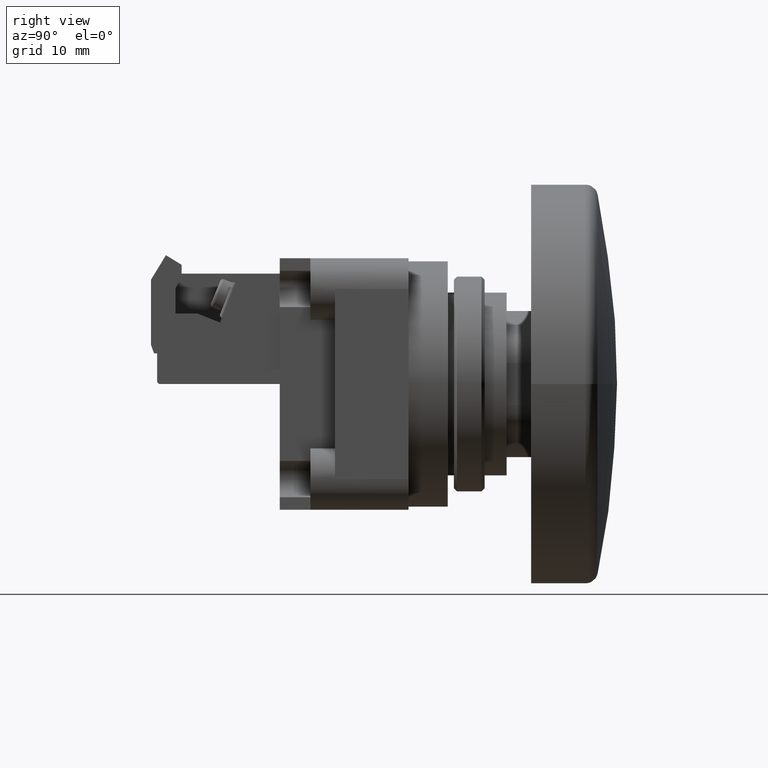
[diagram: clean part render]
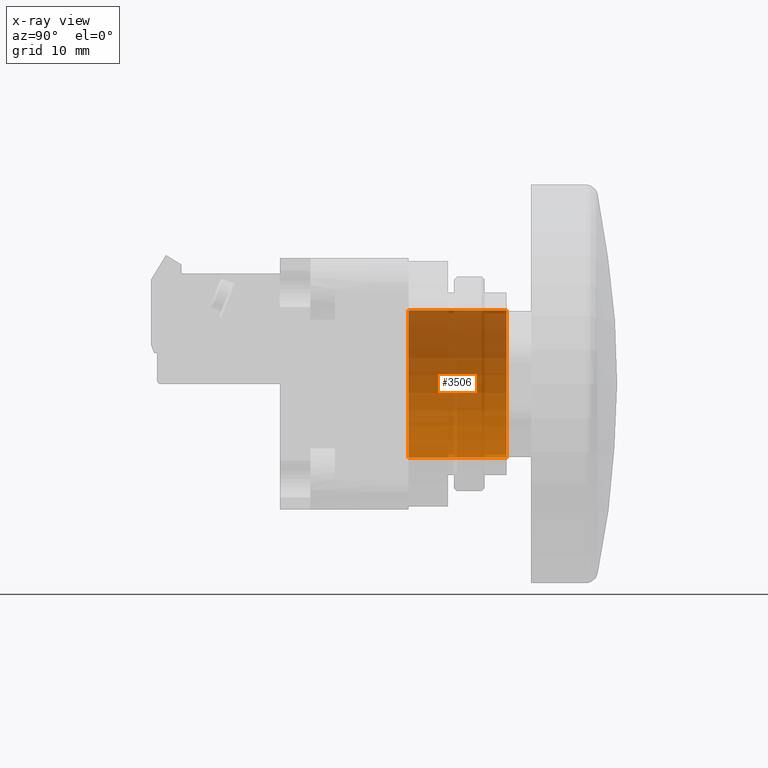
[diagram: x-ray — body ghosted, one internal face saturated and labeled with its STEP entity id]
A machine part, right view, then the same camera in x-ray: the body is ghosted and one INTERNAL B-rep face — a face not visible from any outside direction — is saturated and labeled: STEP entity #3506.
In plain terms, the highlighted cylindrical surface (partial cylindrical patch) has radius 12 mm, axis along (-0, -1, -0).
Its self-contained STEP definition (entity closure, byte-faithful):
#129 = ORIENTED_EDGE ( 'NONE', *, *, #2797, .T. ) ;
#865 = LINE ( 'NONE', #7639, #2068 ) ;
#1174 = EDGE_CURVE ( 'NONE', #2710, #5599, #865, .T. ) ;
#1222 = CARTESIAN_POINT ( 'NONE',  ( 0.0000000000000000000, 0.0000000000000000000, 0.0000000000000000000 ) ) ;
#1335 = DIRECTION ( 'NONE',  ( 0.0000000000000000000, 1.000000000000000000, 0.0000000000000000000 ) ) ;
#1417 = CARTESIAN_POINT ( 'NONE',  ( 0.0000000000000000000, 16.00000000000000000, 0.0000000000000000000 ) ) ;
#1833 = DIRECTION ( 'NONE',  ( 0.0000000000000000000, 0.0000000000000000000, 1.000000000000000000 ) ) ;
#1835 = CYLINDRICAL_SURFACE ( 'NONE', #5753, 12.00000000000000200 ) ;
#1836 = CARTESIAN_POINT ( 'NONE',  ( 0.0000000000000000000, 16.00000000000000000, -12.00000000000000200 ) ) ;
#2068 = VECTOR ( 'NONE', #7070, 1000.000000000000000 ) ;
#2111 = VERTEX_POINT ( 'NONE', #4013 ) ;
#2181 = AXIS2_PLACEMENT_3D ( 'NONE', #1222, #5369, #1833 ) ;
#2198 = FACE_OUTER_BOUND ( 'NONE', #5949, .T. ) ;
#2382 = CIRCLE ( 'NONE', #2181, 12.00000000000000200 ) ;
#2618 = ORIENTED_EDGE ( 'NONE', *, *, #7573, .T. ) ;
#2710 = VERTEX_POINT ( 'NONE', #1836 ) ;
#2797 = EDGE_CURVE ( 'NONE', #2710, #3184, #7619, .T. ) ;
#2863 = ORIENTED_EDGE ( 'NONE', *, *, #3460, .F. ) ;
#2945 = DIRECTION ( 'NONE',  ( -0.0000000000000000000, -1.000000000000000000, -0.0000000000000000000 ) ) ;
#3184 = VERTEX_POINT ( 'NONE', #6888 ) ;
#3207 = DIRECTION ( 'NONE',  ( 0.0000000000000000000, 0.0000000000000000000, -1.000000000000000000 ) ) ;
#3273 = CARTESIAN_POINT ( 'NONE',  ( 0.0000000000000000000, 0.0000000000000000000, -12.00000000000000200 ) ) ;
#3460 = EDGE_CURVE ( 'NONE', #5599, #2111, #2382, .T. ) ;
#3506 = ADVANCED_FACE ( 'NONE', ( #2198 ), #1835, .F. ) ;
#3562 = ORIENTED_EDGE ( 'NONE', *, *, #1174, .F. ) ;
#4013 = CARTESIAN_POINT ( 'NONE',  ( 1.469576158976824100E-015, 0.0000000000000000000, 12.00000000000000200 ) ) ;
#4210 = AXIS2_PLACEMENT_3D ( 'NONE', #4883, #1335, #5481 ) ;
#4883 = CARTESIAN_POINT ( 'NONE',  ( 0.0000000000000000000, 16.00000000000000000, 0.0000000000000000000 ) ) ;
#5302 = VECTOR ( 'NONE', #2945, 1000.000000000000000 ) ;
#5369 = DIRECTION ( 'NONE',  ( 0.0000000000000000000, 1.000000000000000000, 0.0000000000000000000 ) ) ;
#5481 = DIRECTION ( 'NONE',  ( 0.0000000000000000000, 0.0000000000000000000, 1.000000000000000000 ) ) ;
#5599 = VERTEX_POINT ( 'NONE', #3273 ) ;
#5753 = AXIS2_PLACEMENT_3D ( 'NONE', #1417, #6785, #3207 ) ;
#5896 = CARTESIAN_POINT ( 'NONE',  ( 1.469576158976824100E-015, 16.00000000000000000, 12.00000000000000200 ) ) ;
#5949 = EDGE_LOOP ( 'NONE', ( #129, #2618, #2863, #3562 ) ) ;
#6785 = DIRECTION ( 'NONE',  ( -0.0000000000000000000, -1.000000000000000000, -0.0000000000000000000 ) ) ;
#6888 = CARTESIAN_POINT ( 'NONE',  ( 1.469576158976824100E-015, 16.00000000000000000, 12.00000000000000200 ) ) ;
#6918 = LINE ( 'NONE', #5896, #5302 ) ;
#7070 = DIRECTION ( 'NONE',  ( -0.0000000000000000000, -1.000000000000000000, -0.0000000000000000000 ) ) ;
#7573 = EDGE_CURVE ( 'NONE', #3184, #2111, #6918, .T. ) ;
#7619 = CIRCLE ( 'NONE', #4210, 12.00000000000000200 ) ;
#7639 = CARTESIAN_POINT ( 'NONE',  ( 0.0000000000000000000, 16.00000000000000000, -12.00000000000000200 ) ) ;